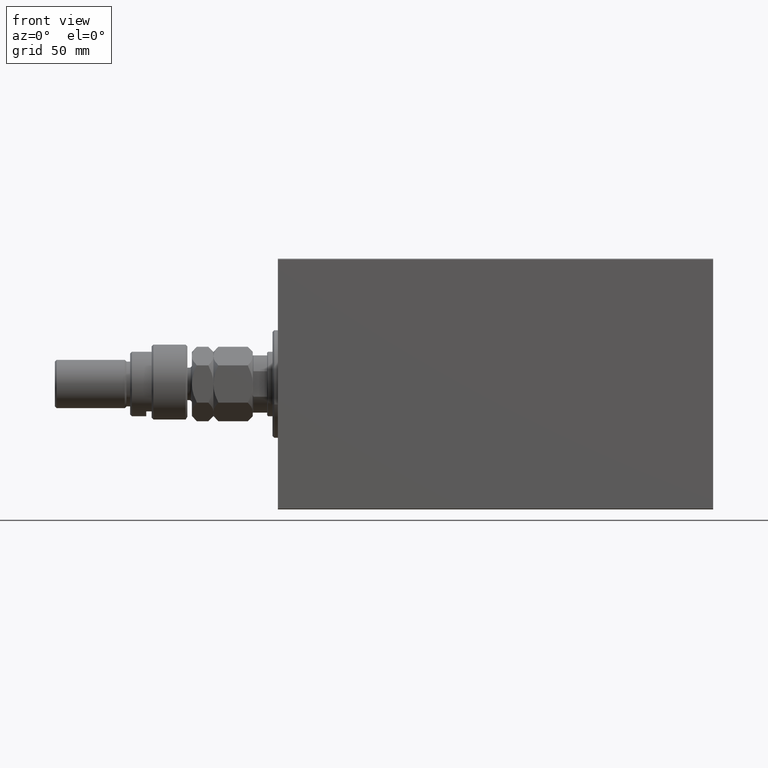
[diagram: clean part render]
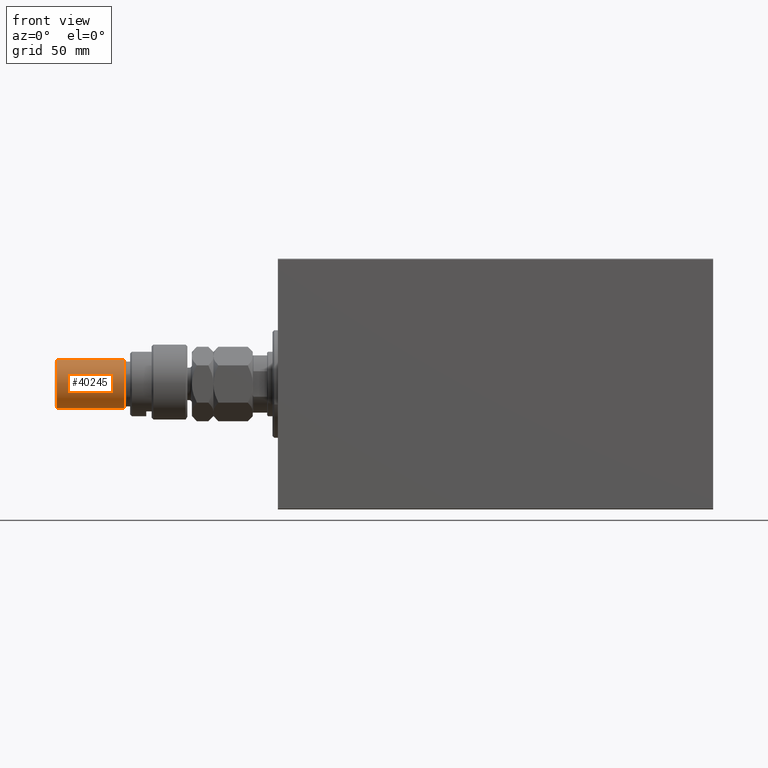
[diagram: same view with one face highlighted and labeled with its STEP entity id]
A machine part, front view. The second image highlights one B-rep face of the part: STEP entity #40245.
In plain terms, the highlighted cylindrical surface (edge-blend (fillet) strip) has radius 13.5 mm, axis along (1, -0, -0).
Its self-contained STEP definition (entity closure, byte-faithful):
#1738 = CARTESIAN_POINT ( 'NONE',  ( -13.50000000000000000, 0.000000000000000000, 74.00000000000001421 ) ) ;
#2266 = FACE_OUTER_BOUND ( 'NONE', #18604, .T. ) ;
#5643 = DIRECTION ( 'NONE',  ( 0.000000000000000000, 0.000000000000000000, -1.000000000000000000 ) ) ;
#6668 = DIRECTION ( 'NONE',  ( -0.000000000000000000, -0.000000000000000000, -1.000000000000000000 ) ) ;
#8770 = EDGE_CURVE ( 'NONE', #42826, #40223, #22574, .T. ) ;
#9128 = DIRECTION ( 'NONE',  ( -0.000000000000000000, -0.000000000000000000, -1.000000000000000000 ) ) ;
#9655 = DIRECTION ( 'NONE',  ( 1.000000000000000000, 0.000000000000000000, 0.000000000000000000 ) ) ;
#14115 = AXIS2_PLACEMENT_3D ( 'NONE', #38456, #5643, #9655 ) ;
#14205 = VERTEX_POINT ( 'NONE', #45615 ) ;
#15907 = DIRECTION ( 'NONE',  ( -0.000000000000000000, -0.000000000000000000, -1.000000000000000000 ) ) ;
#16670 = CARTESIAN_POINT ( 'NONE',  ( 0.000000000000000000, 0.000000000000000000, 74.00000000000001421 ) ) ;
#18604 = EDGE_LOOP ( 'NONE', ( #39730, #42074, #33924, #21994 ) ) ;
#21540 = LINE ( 'NONE', #39475, #29631 ) ;
#21994 = ORIENTED_EDGE ( 'NONE', *, *, #8770, .T. ) ;
#22574 = CIRCLE ( 'NONE', #30113, 13.50000000000000000 ) ;
#22898 = EDGE_CURVE ( 'NONE', #35462, #40223, #21540, .T. ) ;
#23303 = CARTESIAN_POINT ( 'NONE',  ( 13.50000000000000000, 1.653273178848926867E-15, 34.99999999999999289 ) ) ;
#24455 = DIRECTION ( 'NONE',  ( -1.000000000000000000, 0.000000000000000000, 0.000000000000000000 ) ) ;
#25073 = CARTESIAN_POINT ( 'NONE',  ( 13.50000000000000000, 1.653273178848926867E-15, 73.00000000000001421 ) ) ;
#25434 = CIRCLE ( 'NONE', #14115, 13.50000000000000000 ) ;
#28506 = DIRECTION ( 'NONE',  ( -0.000000000000000000, -0.000000000000000000, 1.000000000000000000 ) ) ;
#29631 = VECTOR ( 'NONE', #6668, 1000.000000000000000 ) ;
#30113 = AXIS2_PLACEMENT_3D ( 'NONE', #45990, #28506, #42922 ) ;
#33839 = LINE ( 'NONE', #1738, #43379 ) ;
#33924 = ORIENTED_EDGE ( 'NONE', *, *, #36681, .T. ) ;
#35462 = VERTEX_POINT ( 'NONE', #25073 ) ;
#36681 = EDGE_CURVE ( 'NONE', #14205, #42826, #33839, .T. ) ;
#38456 = CARTESIAN_POINT ( 'NONE',  ( 0.000000000000000000, 0.000000000000000000, 73.00000000000001421 ) ) ;
#39475 = CARTESIAN_POINT ( 'NONE',  ( 13.50000000000000000, 1.653273178848926867E-15, 74.00000000000001421 ) ) ;
#39730 = ORIENTED_EDGE ( 'NONE', *, *, #22898, .F. ) ;
#39735 = AXIS2_PLACEMENT_3D ( 'NONE', #16670, #9128, #24455 ) ;
#40223 = VERTEX_POINT ( 'NONE', #23303 ) ;
#40245 = ADVANCED_FACE ( 'NONE', ( #2266 ), #42173, .T. ) ;
#41211 = EDGE_CURVE ( 'NONE', #35462, #14205, #25434, .T. ) ;
#42074 = ORIENTED_EDGE ( 'NONE', *, *, #41211, .T. ) ;
#42173 = CYLINDRICAL_SURFACE ( 'NONE', #39735, 13.50000000000000000 ) ;
#42826 = VERTEX_POINT ( 'NONE', #43759 ) ;
#42922 = DIRECTION ( 'NONE',  ( 1.000000000000000000, 0.000000000000000000, 0.000000000000000000 ) ) ;
#43379 = VECTOR ( 'NONE', #15907, 1000.000000000000000 ) ;
#43759 = CARTESIAN_POINT ( 'NONE',  ( -13.50000000000000000, 0.000000000000000000, 34.99999999999999289 ) ) ;
#45615 = CARTESIAN_POINT ( 'NONE',  ( -13.50000000000000000, 0.000000000000000000, 73.00000000000001421 ) ) ;
#45990 = CARTESIAN_POINT ( 'NONE',  ( 0.000000000000000000, 0.000000000000000000, 34.99999999999999289 ) ) ;